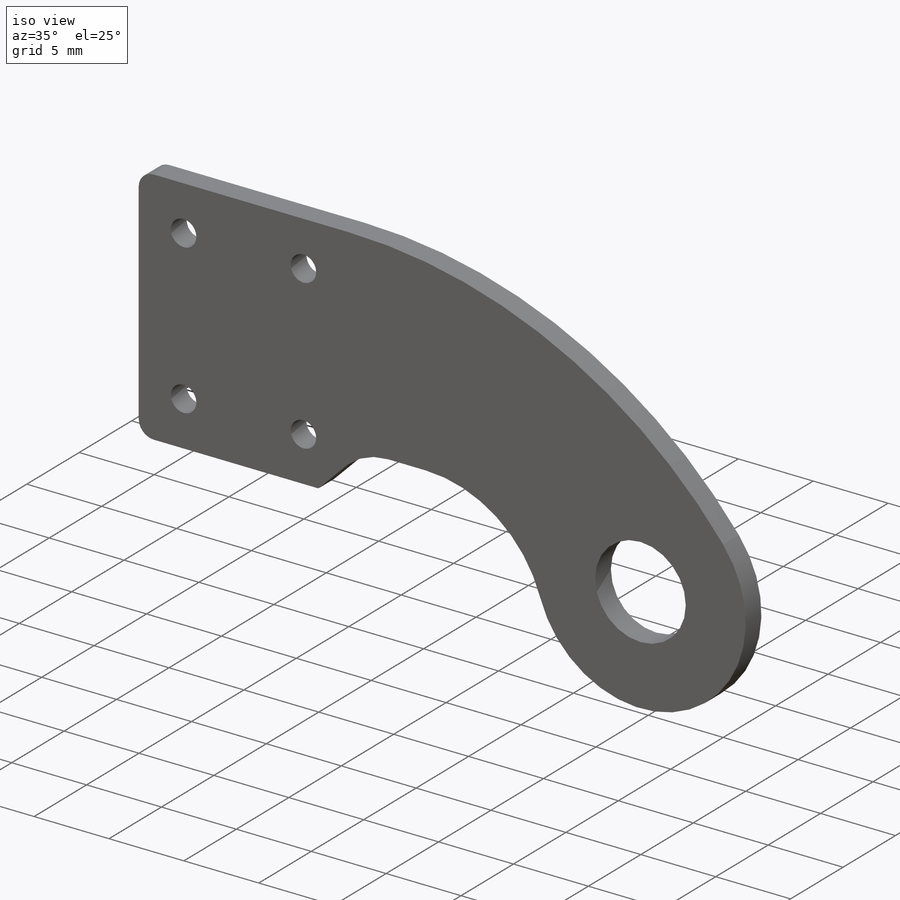
[diagram: iso view]
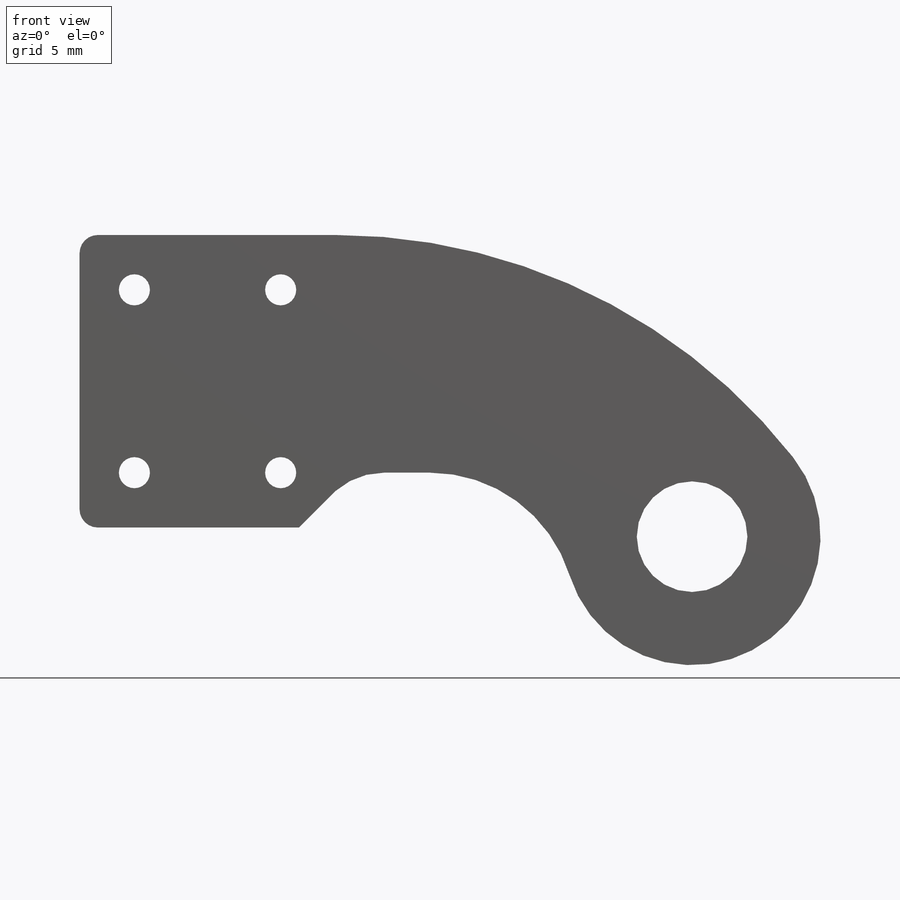
[diagram: front view]
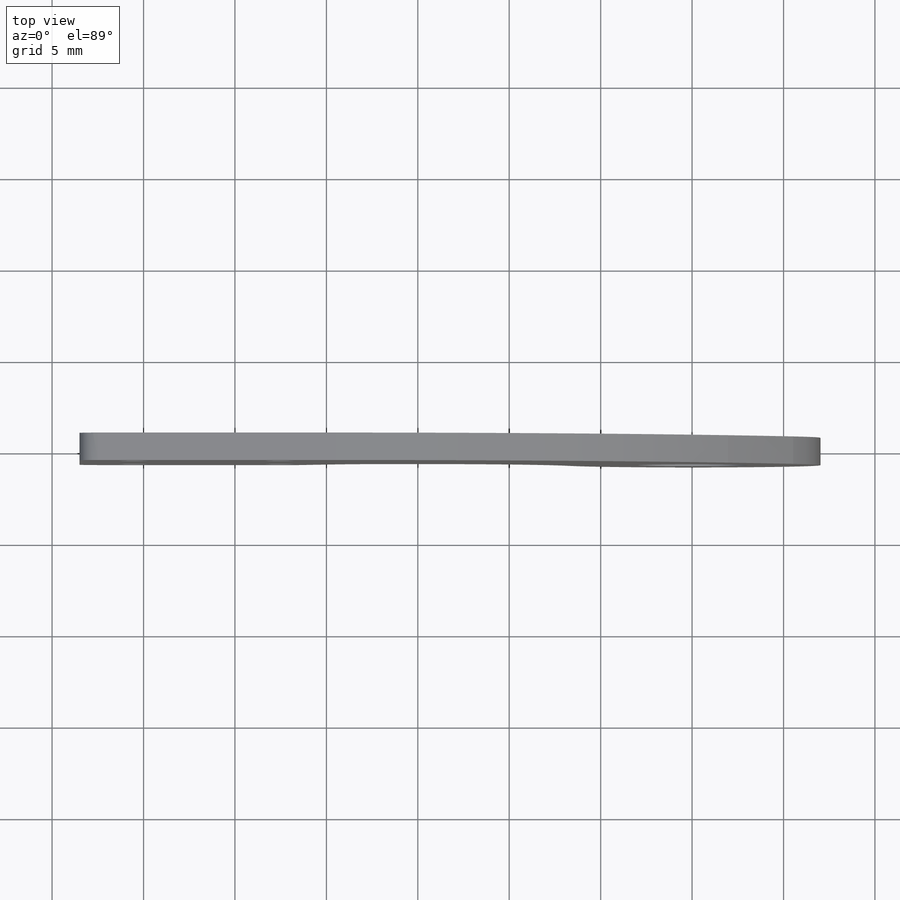
[diagram: top view]
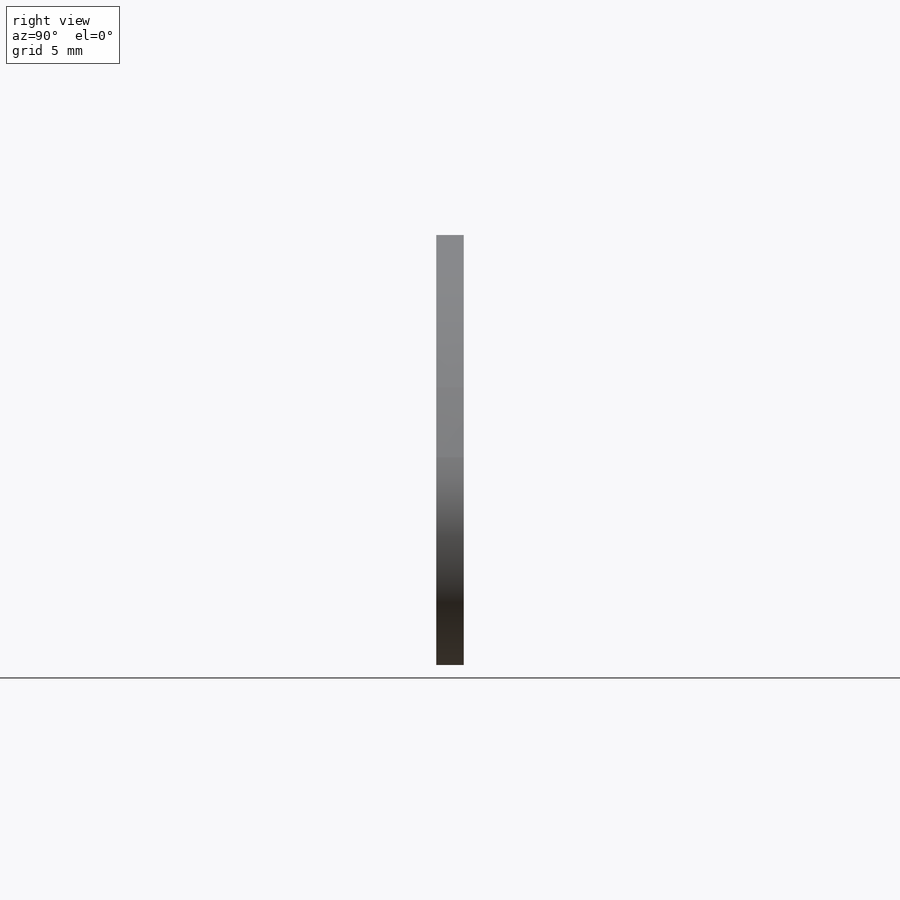
[diagram: right view]
SOLIDWORKS PART (.sldprt)
format: sldprt  version: not decoded by parser v0  size: 222,208 bytes
history: native  units: mm
features: plane x3, chamfer x3, sketch x2, material x1, extrude x1, fillet x1, cut_extrude x1 (+9 scaffold rows collapsed)
feature tree (21):
  scaffold x9  (default folders/planes/origin — collapsed)
  material  "Hexcel AS4C (3000 Filaments)"
  plane  "Plan de face"
  plane  "Plan de dessus"
  plane  "Plan de droite"
  sketch  "Esquisse1"  dims[c1.D1=~9.507468mm c1.D8=14.05mm c1.D9=6.05mm c1.D10=1.7mm c1.D11=1.7mm c1.D12=1.7mm c1.D13=1.7mm c1.D16=~70.773415mm c2.D1=8.0mm c2.D2=10.0mm c2.D3=3.0mm c2.D4=14.0mm c2.D5=3.0mm c2.D6=16.0mm c2.D7=3.0mm c2.D14=3.975mm c2.D15=33.5mm c3.D7=0.5mm c3.D16=~69.642211mm]
  extrude  "Boss.-Extru.1"  Depth=1.5mm
  fillet  "Congé2"  Radius=1mm
  sketch  "Esquisse2"  dims[c1.D1=3.0mm c1.D2=14.0mm c2.D1=3.0mm c2.D2=14.0mm]
  cut_extrude  "Enlèv. mat.-Extru.1"  [1 undecoded]
  chamfer  "Chanfrein1"  Distance=2mm Angle=45deg
  chamfer  "Congé3"  Distance=4mm
  chamfer  "Congé4"  Distance=8mm
decode coverage: 7 of 8 modeling features carry decoded parameters
note: ~ marks probable driven/reference dimensions
note: 1 parameter value undecoded
note: suppression state not decoded; provenance and decode notes live in map.json
